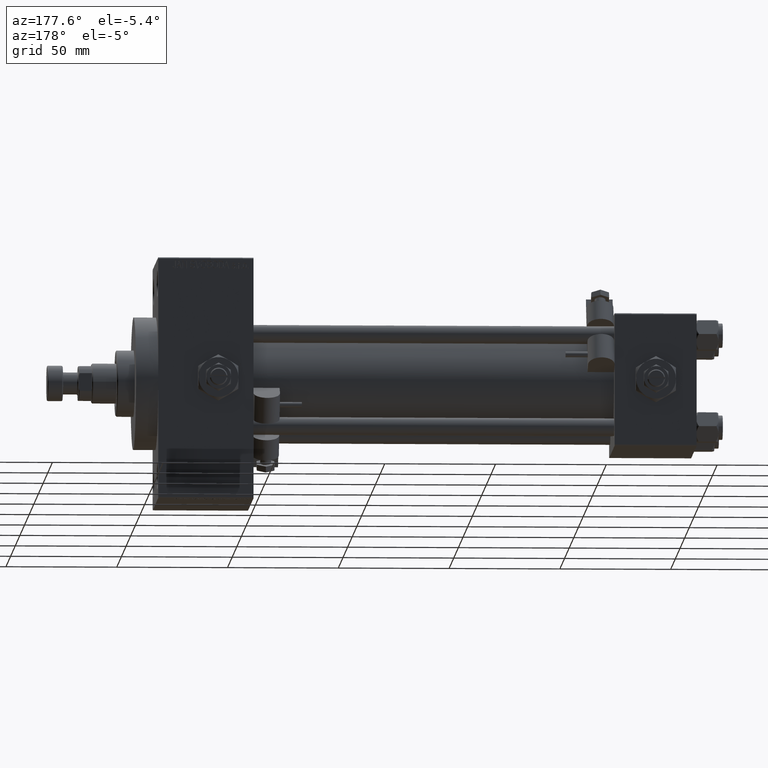
[diagram: clean part render]
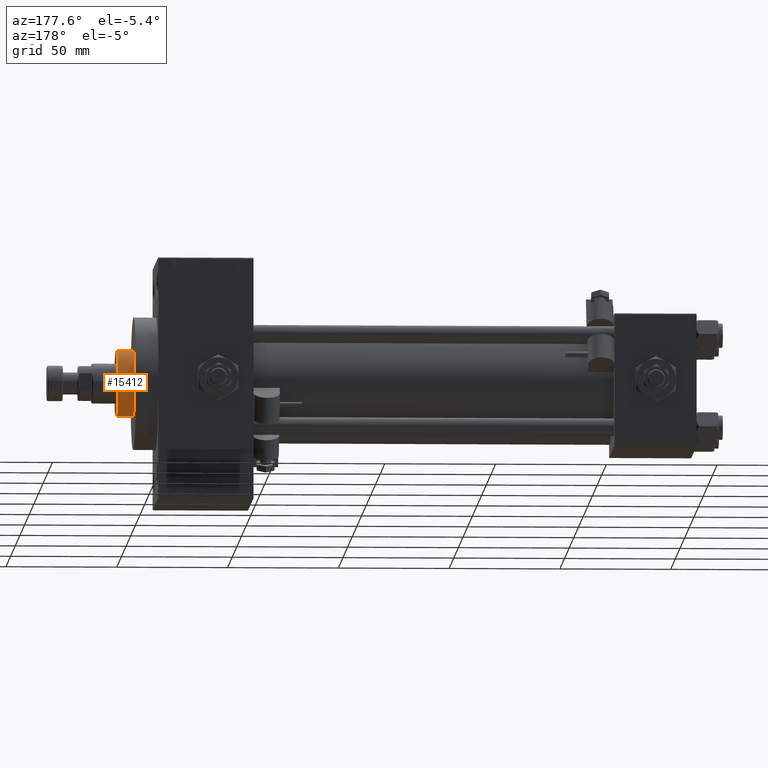
[diagram: same view with one face highlighted and labeled with its STEP entity id]
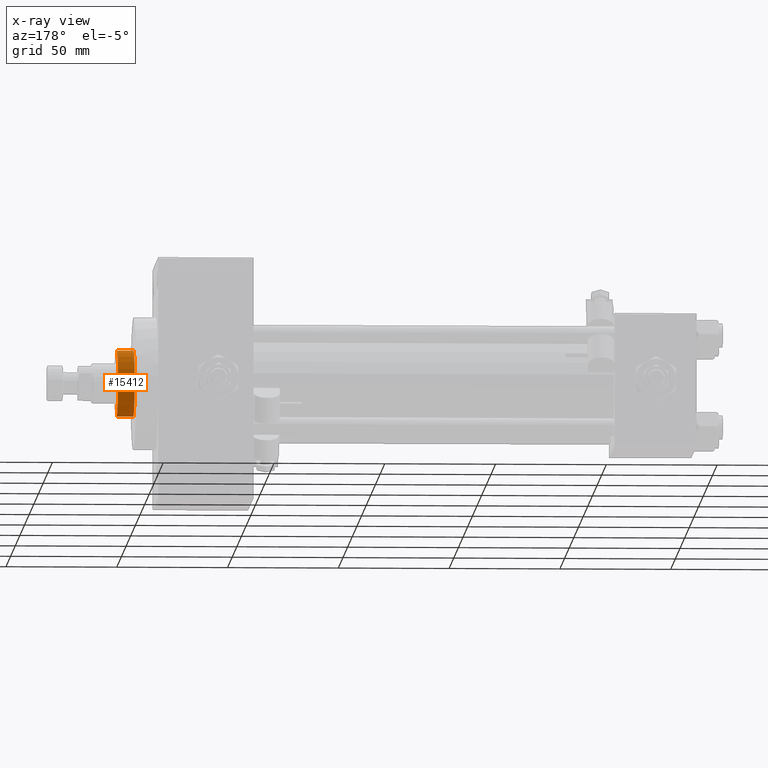
[diagram: x-ray of the same camera — body ghosted, the highlighted face saturated]
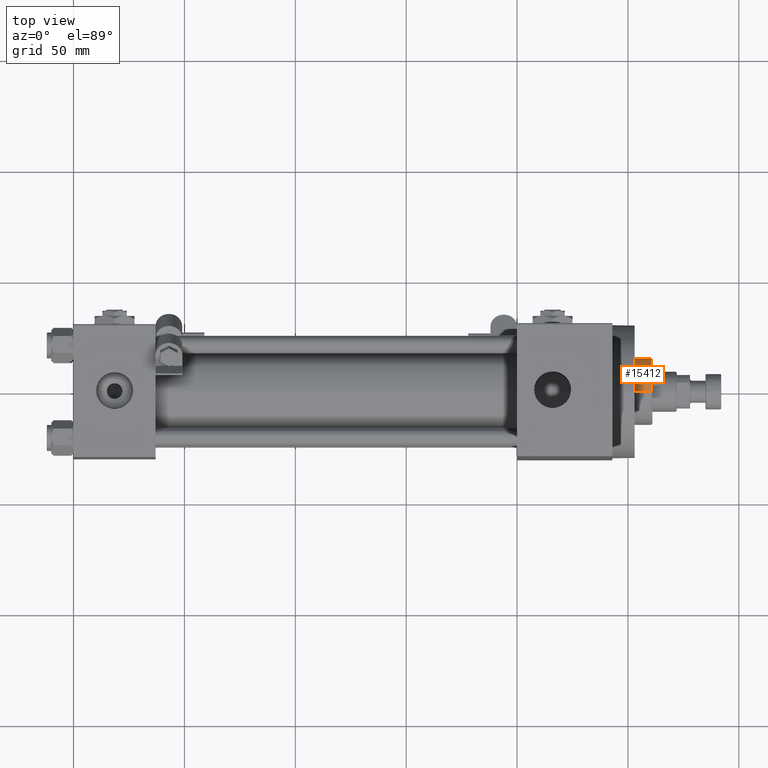
[diagram: same view with one face highlighted and labeled with its STEP entity id]
A machine part, auxiliary view. The second image highlights one B-rep face of the part: STEP entity #15412.
The next image is the same camera in x-ray: the body ghosted, the highlighted face saturated — about 0% of this face is hidden behind the body in this view.
A second angle (top view) of the same face is appended — the face is thin or edge-on in the first view.
In plain terms, the highlighted cylindrical surface (edge-blend (fillet) strip) has radius 15 mm, axis along (-1, 0, 0).
Its self-contained STEP definition (entity closure, byte-faithful):
#837 = CARTESIAN_POINT ( 'NONE',  ( -15.00000000000000000, 0.000000000000000000, 50.75999999999998380 ) ) ;
#2436 = DIRECTION ( 'NONE',  ( 1.000000000000000000, 0.000000000000000000, 0.000000000000000000 ) ) ;
#7186 = VERTEX_POINT ( 'NONE', #837 ) ;
#7460 = ORIENTED_EDGE ( 'NONE', *, *, #29389, .T. ) ;
#8068 = EDGE_CURVE ( 'NONE', #13506, #47536, #50407, .T. ) ;
#8564 = VECTOR ( 'NONE', #44054, 1000.000000000000000 ) ;
#10236 = DIRECTION ( 'NONE',  ( 1.000000000000000000, 0.000000000000000000, 0.000000000000000000 ) ) ;
#11673 = CIRCLE ( 'NONE', #46951, 15.00000000000000000 ) ;
#11914 = DIRECTION ( 'NONE',  ( -0.000000000000000000, -0.000000000000000000, -1.000000000000000000 ) ) ;
#12493 = CARTESIAN_POINT ( 'NONE',  ( -15.00000000000000000, 0.000000000000000000, 43.25999999999999801 ) ) ;
#13506 = VERTEX_POINT ( 'NONE', #12493 ) ;
#13603 = DIRECTION ( 'NONE',  ( 0.000000000000000000, 0.000000000000000000, -1.000000000000000000 ) ) ;
#14680 = ORIENTED_EDGE ( 'NONE', *, *, #20062, .T. ) ;
#15265 = DIRECTION ( 'NONE',  ( -1.000000000000000000, 0.000000000000000000, 0.000000000000000000 ) ) ;
#15412 = ADVANCED_FACE ( 'NONE', ( #39171 ), #27104, .T. ) ;
#17092 = DIRECTION ( 'NONE',  ( 0.000000000000000000, 0.000000000000000000, 1.000000000000000000 ) ) ;
#18666 = ORIENTED_EDGE ( 'NONE', *, *, #8068, .T. ) ;
#20062 = EDGE_CURVE ( 'NONE', #7186, #13506, #32357, .T. ) ;
#21965 = CARTESIAN_POINT ( 'NONE',  ( 0.000000000000000000, 0.000000000000000000, 43.25999999999999801 ) ) ;
#22216 = CARTESIAN_POINT ( 'NONE',  ( 15.00000000000000000, 1.836970198721029589E-15, 50.75999999999998380 ) ) ;
#27104 = CYLINDRICAL_SURFACE ( 'NONE', #40810, 15.00000000000000000 ) ;
#28107 = CARTESIAN_POINT ( 'NONE',  ( 0.000000000000000000, 0.000000000000000000, 51.25999999999999801 ) ) ;
#28648 = LINE ( 'NONE', #46713, #8564 ) ;
#29389 = EDGE_CURVE ( 'NONE', #31581, #7186, #11673, .T. ) ;
#30041 = CARTESIAN_POINT ( 'NONE',  ( 0.000000000000000000, 0.000000000000000000, 50.75999999999998380 ) ) ;
#31581 = VERTEX_POINT ( 'NONE', #22216 ) ;
#32357 = LINE ( 'NONE', #43912, #45778 ) ;
#32873 = DIRECTION ( 'NONE',  ( -0.000000000000000000, -0.000000000000000000, -1.000000000000000000 ) ) ;
#33578 = CARTESIAN_POINT ( 'NONE',  ( 15.00000000000000000, 1.836970198721029589E-15, 43.25999999999999801 ) ) ;
#34824 = AXIS2_PLACEMENT_3D ( 'NONE', #21965, #17092, #2436 ) ;
#39171 = FACE_OUTER_BOUND ( 'NONE', #45179, .T. ) ;
#40697 = ORIENTED_EDGE ( 'NONE', *, *, #43537, .F. ) ;
#40810 = AXIS2_PLACEMENT_3D ( 'NONE', #28107, #11914, #15265 ) ;
#43537 = EDGE_CURVE ( 'NONE', #31581, #47536, #28648, .T. ) ;
#43912 = CARTESIAN_POINT ( 'NONE',  ( -15.00000000000000000, 0.000000000000000000, 51.25999999999999801 ) ) ;
#44054 = DIRECTION ( 'NONE',  ( -0.000000000000000000, -0.000000000000000000, -1.000000000000000000 ) ) ;
#45179 = EDGE_LOOP ( 'NONE', ( #40697, #7460, #14680, #18666 ) ) ;
#45778 = VECTOR ( 'NONE', #32873, 1000.000000000000000 ) ;
#46713 = CARTESIAN_POINT ( 'NONE',  ( 15.00000000000000000, 1.836970198721029589E-15, 51.25999999999999801 ) ) ;
#46951 = AXIS2_PLACEMENT_3D ( 'NONE', #30041, #13603, #10236 ) ;
#47536 = VERTEX_POINT ( 'NONE', #33578 ) ;
#50407 = CIRCLE ( 'NONE', #34824, 15.00000000000000000 ) ;